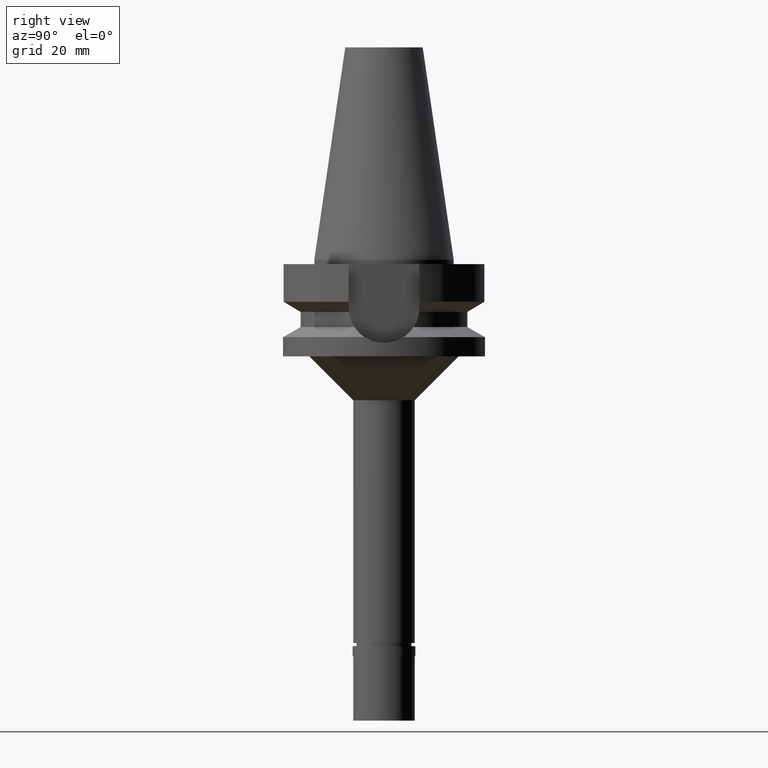
[diagram: clean part render]
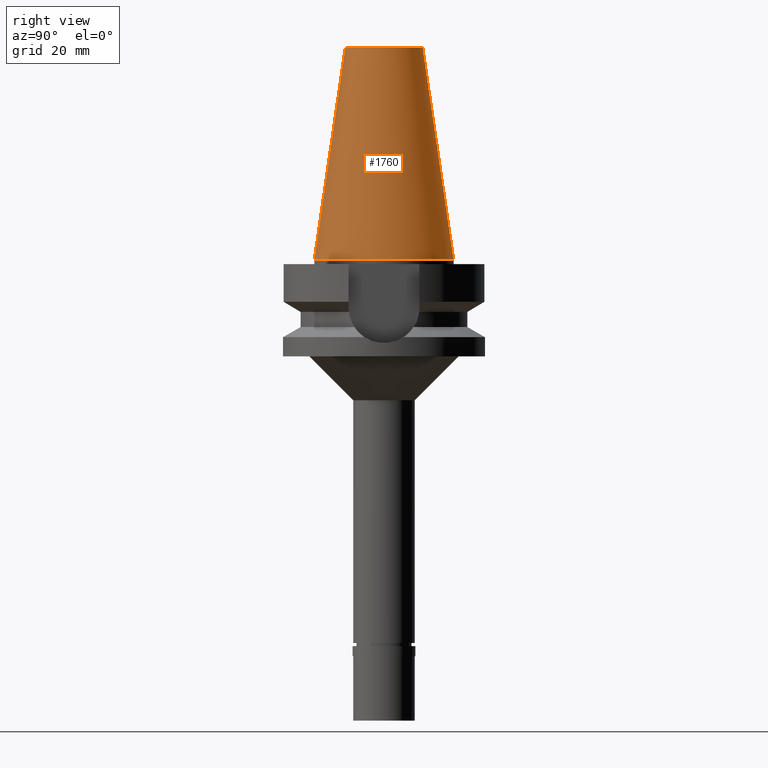
[diagram: same view with one face highlighted and labeled with its STEP entity id]
A machine part, right view. The second image highlights one B-rep face of the part: STEP entity #1760.
In plain terms, the highlighted conical surface has half-angle 8.297 deg.
Its self-contained STEP definition (entity closure, byte-faithful):
#75 = CARTESIAN_POINT ( 'NONE',  ( 0.0000000000000000000, 1.521011324540999938E-14, -3.694822225953000089E-13 ) ) ;
#158 = EDGE_CURVE ( 'NONE', #2806, #603, #1381, .T. ) ;
#159 = VERTEX_POINT ( 'NONE', #468 ) ;
#203 = VECTOR ( 'NONE', #2503, 1000.000000000000114 ) ;
#216 = DIRECTION ( 'NONE',  ( 0.0000000000000000000, -0.1443043893539925626, -0.9895333461855498891 ) ) ;
#363 = CARTESIAN_POINT ( 'NONE',  ( 0.0000000000000000000, -8.816791732783000768, 48.39999999999999858 ) ) ;
#468 = CARTESIAN_POINT ( 'NONE',  ( 0.0000000000000000000, -15.87500000000000000, -1.598721155459999993E-13 ) ) ;
#479 = EDGE_CURVE ( 'NONE', #1182, #159, #1465, .T. ) ;
#603 = VERTEX_POINT ( 'NONE', #1126 ) ;
#689 = EDGE_LOOP ( 'NONE', ( #2212, #2871, #2411, #1916 ) ) ;
#824 = CARTESIAN_POINT ( 'NONE',  ( 0.0000000000000000000, 1.521011324540999938E-14, 24.19999999999999929 ) ) ;
#863 = AXIS2_PLACEMENT_3D ( 'NONE', #824, #2226, #2858 ) ;
#996 = CARTESIAN_POINT ( 'NONE',  ( 0.0000000000000000000, -8.816791732783000768, 48.39999999999999858 ) ) ;
#1126 = CARTESIAN_POINT ( 'NONE',  ( 0.0000000000000000000, 15.87500000000000000, -1.598721155459999993E-13 ) ) ;
#1164 = CARTESIAN_POINT ( 'NONE',  ( 0.0000000000000000000, 1.521011324540999938E-14, 48.39999999999999858 ) ) ;
#1177 = EDGE_CURVE ( 'NONE', #603, #159, #2119, .T. ) ;
#1182 = VERTEX_POINT ( 'NONE', #363 ) ;
#1381 = LINE ( 'NONE', #2237, #203 ) ;
#1465 = LINE ( 'NONE', #996, #2621 ) ;
#1620 = CONICAL_SURFACE ( 'NONE', #863, 12.34589586639000025, 0.1448099680379422438 ) ;
#1649 = DIRECTION ( 'NONE',  ( 0.0000000000000000000, 1.000000000000000000, 0.0000000000000000000 ) ) ;
#1760 = ADVANCED_FACE ( 'NONE', ( #1765 ), #1620, .T. ) ;
#1765 = FACE_OUTER_BOUND ( 'NONE', #689, .T. ) ;
#1870 = DIRECTION ( 'NONE',  ( 0.0000000000000000000, 0.0000000000000000000, -1.000000000000000000 ) ) ;
#1904 = AXIS2_PLACEMENT_3D ( 'NONE', #1164, #2731, #2185 ) ;
#1916 = ORIENTED_EDGE ( 'NONE', *, *, #158, .F. ) ;
#2084 = AXIS2_PLACEMENT_3D ( 'NONE', #75, #1870, #1649 ) ;
#2119 = CIRCLE ( 'NONE', #2084, 15.87500000000000000 ) ;
#2185 = DIRECTION ( 'NONE',  ( 0.0000000000000000000, 1.000000000000000000, 0.0000000000000000000 ) ) ;
#2212 = ORIENTED_EDGE ( 'NONE', *, *, #2879, .T. ) ;
#2226 = DIRECTION ( 'NONE',  ( 0.0000000000000000000, 0.0000000000000000000, -1.000000000000000000 ) ) ;
#2237 = CARTESIAN_POINT ( 'NONE',  ( 0.0000000000000000000, 8.816791732783000768, 48.39999999999999858 ) ) ;
#2411 = ORIENTED_EDGE ( 'NONE', *, *, #1177, .F. ) ;
#2503 = DIRECTION ( 'NONE',  ( 0.0000000000000000000, 0.1443043893539925626, -0.9895333461855498891 ) ) ;
#2621 = VECTOR ( 'NONE', #216, 1000.000000000000114 ) ;
#2731 = DIRECTION ( 'NONE',  ( 0.0000000000000000000, 0.0000000000000000000, -1.000000000000000000 ) ) ;
#2806 = VERTEX_POINT ( 'NONE', #2807 ) ;
#2807 = CARTESIAN_POINT ( 'NONE',  ( 0.0000000000000000000, 8.816791732783000768, 48.39999999999999858 ) ) ;
#2858 = DIRECTION ( 'NONE',  ( 0.0000000000000000000, -1.000000000000000000, 0.0000000000000000000 ) ) ;
#2870 = CIRCLE ( 'NONE', #1904, 8.816791732783000768 ) ;
#2871 = ORIENTED_EDGE ( 'NONE', *, *, #479, .T. ) ;
#2879 = EDGE_CURVE ( 'NONE', #2806, #1182, #2870, .T. ) ;